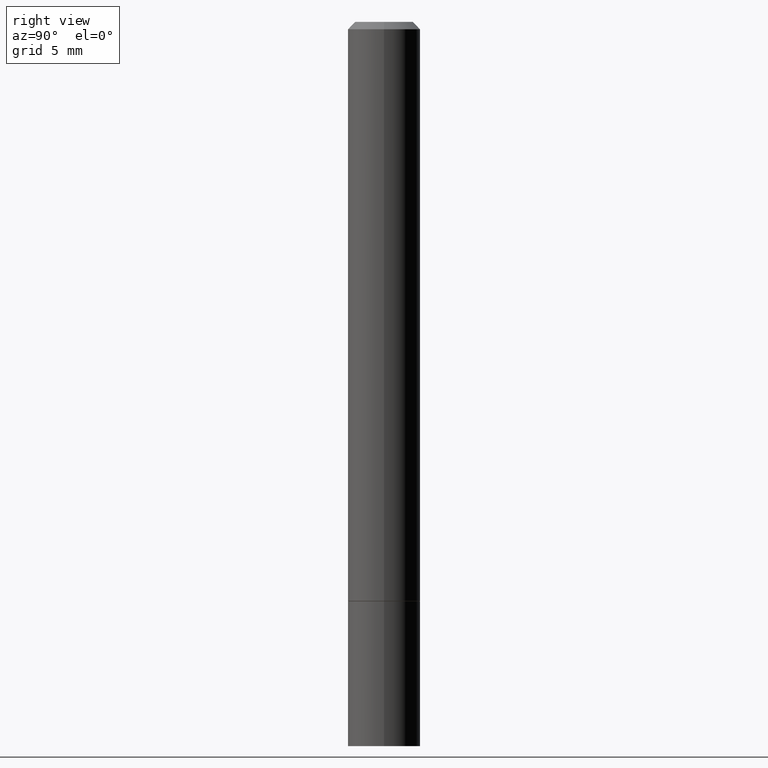
[diagram: clean part render]
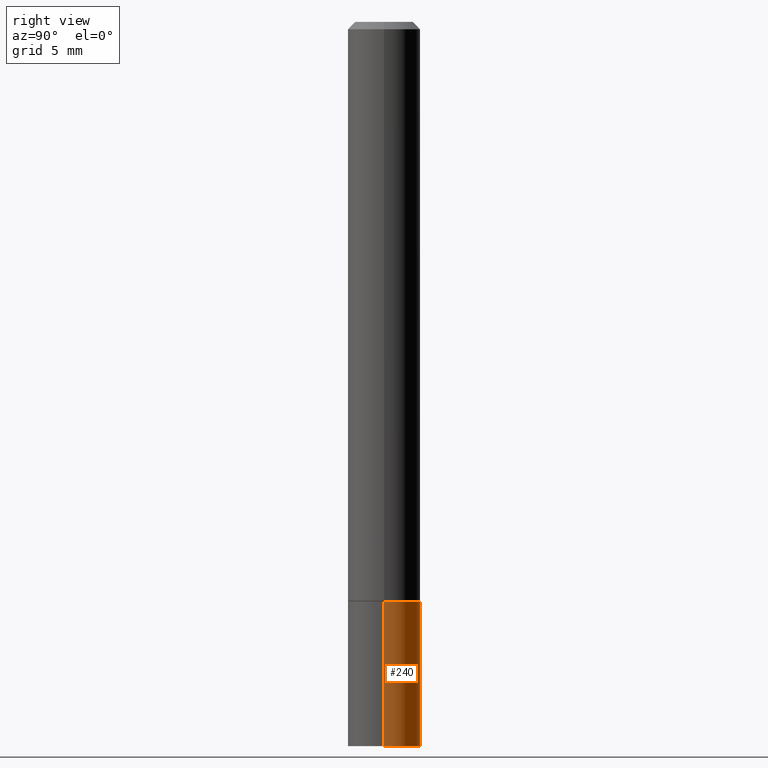
[diagram: same view with one face highlighted and labeled with its STEP entity id]
A machine part, right view. The second image highlights one B-rep face of the part: STEP entity #240.
In plain terms, the highlighted cylindrical surface (edge-blend (fillet) strip) has radius 2.5006 mm, axis along (-0, 0, 1).
Its self-contained STEP definition (entity closure, byte-faithful):
#9 = LINE ( 'NONE', #100, #284 ) ;
#12 = EDGE_CURVE ( 'NONE', #117, #337, #9, .T. ) ;
#16 = CIRCLE ( 'NONE', #170, 0.09844999999999999585 ) ;
#24 = VERTEX_POINT ( 'NONE', #294 ) ;
#47 = DIRECTION ( 'NONE',  ( 1.000000000000000000, -6.982962677686265922E-15, 0.000000000000000000 ) ) ;
#49 = VECTOR ( 'NONE', #359, 39.37007874015748143 ) ;
#62 = CARTESIAN_POINT ( 'NONE',  ( 4.813905344975441835E-29, -6.872981015512731707E-15, -1.968500000000000139 ) ) ;
#72 = ORIENTED_EDGE ( 'NONE', *, *, #194, .T. ) ;
#97 = DIRECTION ( 'NONE',  ( 1.000000000000000000, -6.982962677686266711E-15, 4.876176775795936353E-29 ) ) ;
#100 = CARTESIAN_POINT ( 'NONE',  ( 0.09844999999999999585, -6.874726756182129545E-16, 4.800596035771099214E-30 ) ) ;
#112 = CARTESIAN_POINT ( 'NONE',  ( 0.09844999999999999585, -6.185857488028398715E-15, -1.574800000000000200 ) ) ;
#117 = VERTEX_POINT ( 'NONE', #346 ) ;
#124 = DIRECTION ( 'NONE',  ( -2.445468806185136877E-29, 3.491481338843145188E-15, 1.000000000000000000 ) ) ;
#148 = FACE_OUTER_BOUND ( 'NONE', #358, .T. ) ;
#170 = AXIS2_PLACEMENT_3D ( 'NONE', #62, #282, #290 ) ;
#179 = ORIENTED_EDGE ( 'NONE', *, *, #274, .F. ) ;
#184 = DIRECTION ( 'NONE',  ( -2.445468806185136597E-29, 3.491481338843145583E-15, 1.000000000000000000 ) ) ;
#192 = AXIS2_PLACEMENT_3D ( 'NONE', #231, #229, #97 ) ;
#194 = EDGE_CURVE ( 'NONE', #117, #24, #16, .T. ) ;
#197 = CIRCLE ( 'NONE', #277, 0.09844999999999999585 ) ;
#214 = CARTESIAN_POINT ( 'NONE',  ( 3.851124275980353356E-29, -5.498384812410186155E-15, -1.574800000000000200 ) ) ;
#229 = DIRECTION ( 'NONE',  ( -2.445468806185136597E-29, 3.491481338843145583E-15, 1.000000000000000000 ) ) ;
#231 = CARTESIAN_POINT ( 'NONE',  ( 0.000000000000000000, 0.000000000000000000, 0.000000000000000000 ) ) ;
#235 = ORIENTED_EDGE ( 'NONE', *, *, #12, .F. ) ;
#240 = ADVANCED_FACE ( 'NONE', ( #148 ), #310, .T. ) ;
#274 = EDGE_CURVE ( 'NONE', #337, #276, #197, .T. ) ;
#276 = VERTEX_POINT ( 'NONE', #296 ) ;
#277 = AXIS2_PLACEMENT_3D ( 'NONE', #214, #184, #47 ) ;
#282 = DIRECTION ( 'NONE',  ( -2.445468806185136597E-29, 3.491481338843145583E-15, 1.000000000000000000 ) ) ;
#284 = VECTOR ( 'NONE', #124, 39.37007874015748143 ) ;
#290 = DIRECTION ( 'NONE',  ( 1.000000000000000000, -6.982962677686265922E-15, 0.000000000000000000 ) ) ;
#294 = CARTESIAN_POINT ( 'NONE',  ( -0.09844999999999999585, -5.486153590605640426E-15, -1.968500000000000139 ) ) ;
#296 = CARTESIAN_POINT ( 'NONE',  ( -0.09844999999999999585, -5.486153590605640426E-15, -1.574800000000000200 ) ) ;
#310 = CYLINDRICAL_SURFACE ( 'NONE', #192, 0.09844999999999999585 ) ;
#311 = ORIENTED_EDGE ( 'NONE', *, *, #330, .T. ) ;
#330 = EDGE_CURVE ( 'NONE', #24, #276, #335, .T. ) ;
#335 = LINE ( 'NONE', #364, #49 ) ;
#337 = VERTEX_POINT ( 'NONE', #112 ) ;
#346 = CARTESIAN_POINT ( 'NONE',  ( 0.09844999999999999585, -7.560453691130944267E-15, -1.968500000000000139 ) ) ;
#358 = EDGE_LOOP ( 'NONE', ( #72, #311, #179, #235 ) ) ;
#359 = DIRECTION ( 'NONE',  ( -2.445468806185136877E-29, 3.491481338843145188E-15, 1.000000000000000000 ) ) ;
#364 = CARTESIAN_POINT ( 'NONE',  ( -0.09844999999999999585, 6.995293233558186035E-16, -4.842691596355954042E-30 ) ) ;